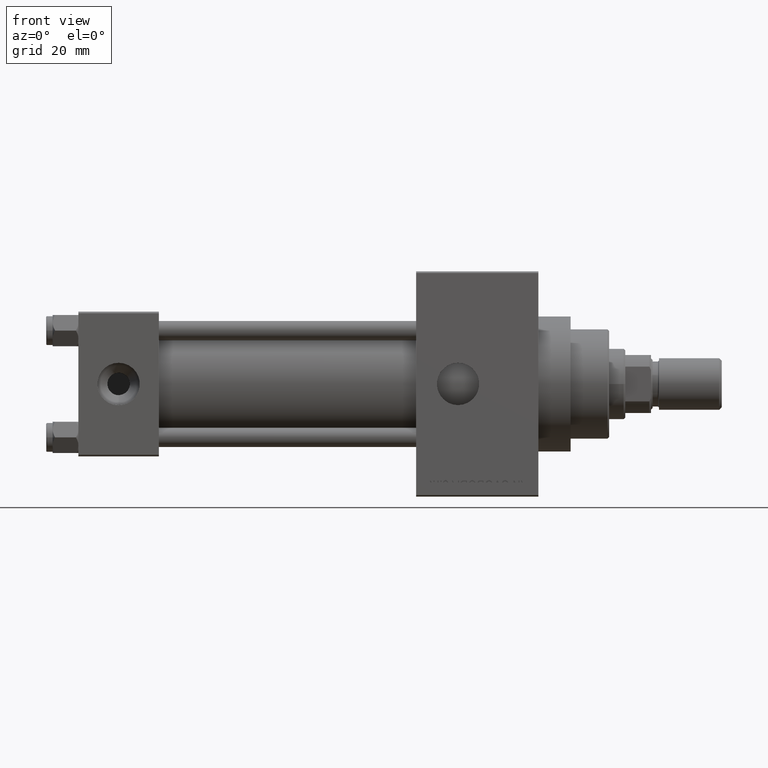
[diagram: clean part render]
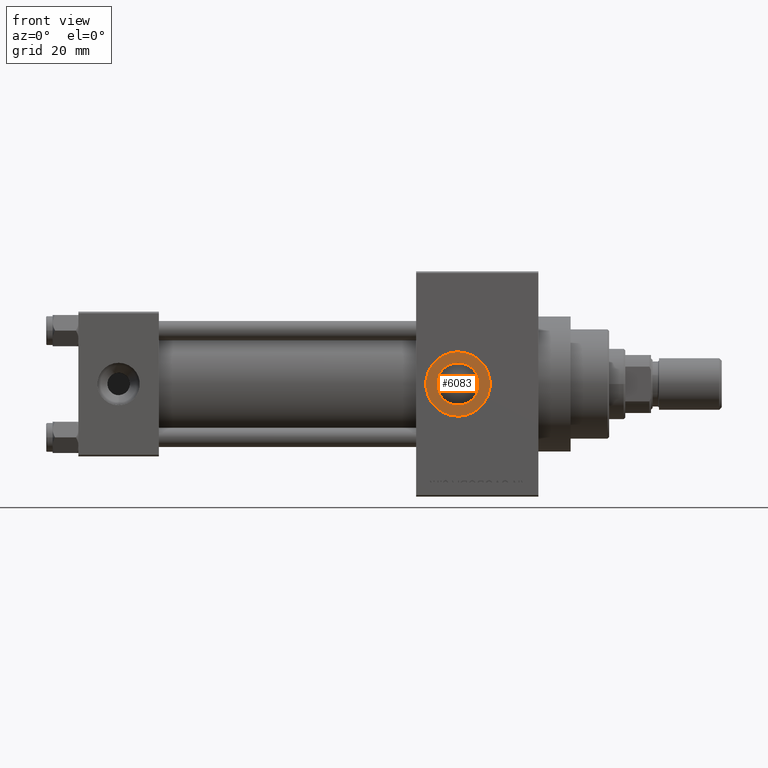
[diagram: same view with one face highlighted and labeled with its STEP entity id]
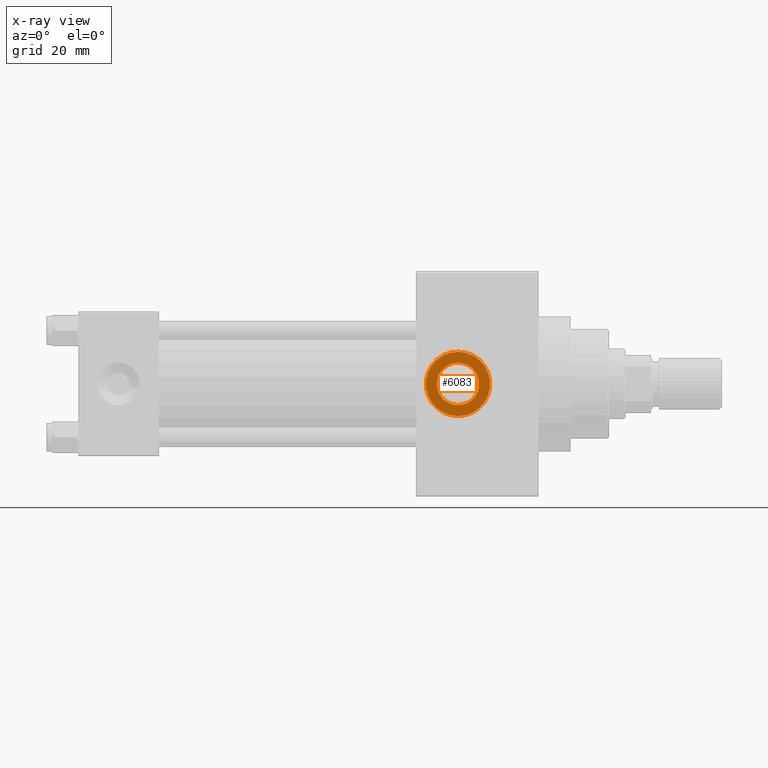
[diagram: x-ray of the same camera — body ghosted, the highlighted face saturated]
A machine part, front view. The second image highlights one B-rep face of the part: STEP entity #6083.
The next image is the same camera in x-ray: the body ghosted, the highlighted face saturated — about 0% of this face is hidden behind the body in this view.
In plain terms, the highlighted planar face has unit normal (0, -1, -0).
Its self-contained STEP definition (entity closure, byte-faithful):
#1030 = CARTESIAN_POINT ( 'NONE',  ( 118.0000000000000142, -22.30000000000000426, 1.734723475976807403E-17 ) ) ;
#2428 = EDGE_CURVE ( 'NONE', #38421, #14865, #46149, .T. ) ;
#2534 = CARTESIAN_POINT ( 'NONE',  ( 118.0000000000000142, -22.30000000000000426, 9.999999999999994671 ) ) ;
#5384 = VERTEX_POINT ( 'NONE', #12516 ) ;
#5517 = EDGE_LOOP ( 'NONE', ( #28902, #30629 ) ) ;
#6083 = ADVANCED_FACE ( 'NONE', ( #31010, #16244 ), #15992, .T. ) ;
#6625 = CARTESIAN_POINT ( 'NONE',  ( 118.0000000000000142, -22.30000000000000426, 1.734723475976807403E-17 ) ) ;
#6966 = AXIS2_PLACEMENT_3D ( 'NONE', #14555, #26051, #23535 ) ;
#12311 = EDGE_CURVE ( 'NONE', #5384, #29809, #32914, .T. ) ;
#12516 = CARTESIAN_POINT ( 'NONE',  ( 118.0000000000000142, -22.30000000000000426, -9.999999999999994671 ) ) ;
#13384 = ORIENTED_EDGE ( 'NONE', *, *, #12311, .T. ) ;
#13645 = DIRECTION ( 'NONE',  ( 0.000000000000000000, -1.000000000000000000, -8.673617379884036705E-17 ) ) ;
#14555 = CARTESIAN_POINT ( 'NONE',  ( 118.0000000000000142, -22.30000000000000426, 1.734723475976808635E-17 ) ) ;
#14865 = VERTEX_POINT ( 'NONE', #43890 ) ;
#15992 = PLANE ( 'NONE',  #47049 ) ;
#16244 = FACE_OUTER_BOUND ( 'NONE', #49486, .T. ) ;
#16906 = CARTESIAN_POINT ( 'NONE',  ( 118.0000000000000142, -22.30000000000000426, -6.580000000000002736 ) ) ;
#17391 = DIRECTION ( 'NONE',  ( 0.000000000000000000, 0.000000000000000000, -1.000000000000000000 ) ) ;
#19998 = DIRECTION ( 'NONE',  ( 0.000000000000000000, 0.000000000000000000, -1.000000000000000000 ) ) ;
#20260 = EDGE_CURVE ( 'NONE', #29809, #5384, #48262, .T. ) ;
#23535 = DIRECTION ( 'NONE',  ( 0.000000000000000000, 0.000000000000000000, -1.000000000000000000 ) ) ;
#25318 = CIRCLE ( 'NONE', #45367, 6.580000000000002736 ) ;
#26051 = DIRECTION ( 'NONE',  ( 0.000000000000000000, -1.000000000000000000, -8.673617379884036705E-17 ) ) ;
#26851 = ORIENTED_EDGE ( 'NONE', *, *, #20260, .T. ) ;
#28902 = ORIENTED_EDGE ( 'NONE', *, *, #2428, .F. ) ;
#29809 = VERTEX_POINT ( 'NONE', #2534 ) ;
#30629 = ORIENTED_EDGE ( 'NONE', *, *, #46639, .F. ) ;
#31010 = FACE_BOUND ( 'NONE', #5517, .T. ) ;
#31027 = CARTESIAN_POINT ( 'NONE',  ( 118.0000000000000142, -22.30000000000000426, 1.734723475976808635E-17 ) ) ;
#32914 = CIRCLE ( 'NONE', #36098, 9.999999999999994671 ) ;
#35524 = DIRECTION ( 'NONE',  ( 0.000000000000000000, 8.673617379884036705E-17, -1.000000000000000000 ) ) ;
#36098 = AXIS2_PLACEMENT_3D ( 'NONE', #6625, #13645, #17391 ) ;
#36580 = DIRECTION ( 'NONE',  ( 0.000000000000000000, 0.000000000000000000, -1.000000000000000000 ) ) ;
#38421 = VERTEX_POINT ( 'NONE', #16906 ) ;
#40341 = DIRECTION ( 'NONE',  ( 0.000000000000000000, -1.000000000000000000, -8.673617379884036705E-17 ) ) ;
#42059 = DIRECTION ( 'NONE',  ( 0.000000000000000000, -1.000000000000000000, -8.673617379884036705E-17 ) ) ;
#42810 = DIRECTION ( 'NONE',  ( 0.000000000000000000, -1.000000000000000000, -8.673617379884036705E-17 ) ) ;
#43464 = AXIS2_PLACEMENT_3D ( 'NONE', #1030, #40341, #36580 ) ;
#43890 = CARTESIAN_POINT ( 'NONE',  ( 118.0000000000000142, -22.30000000000000426, 6.580000000000002736 ) ) ;
#45367 = AXIS2_PLACEMENT_3D ( 'NONE', #31027, #42810, #19998 ) ;
#46057 = CARTESIAN_POINT ( 'NONE',  ( 118.0000000000000142, -22.30000000000000426, 1.734723475976807403E-17 ) ) ;
#46149 = CIRCLE ( 'NONE', #6966, 6.580000000000002736 ) ;
#46639 = EDGE_CURVE ( 'NONE', #14865, #38421, #25318, .T. ) ;
#47049 = AXIS2_PLACEMENT_3D ( 'NONE', #46057, #42059, #35524 ) ;
#48262 = CIRCLE ( 'NONE', #43464, 9.999999999999994671 ) ;
#49486 = EDGE_LOOP ( 'NONE', ( #13384, #26851 ) ) ;